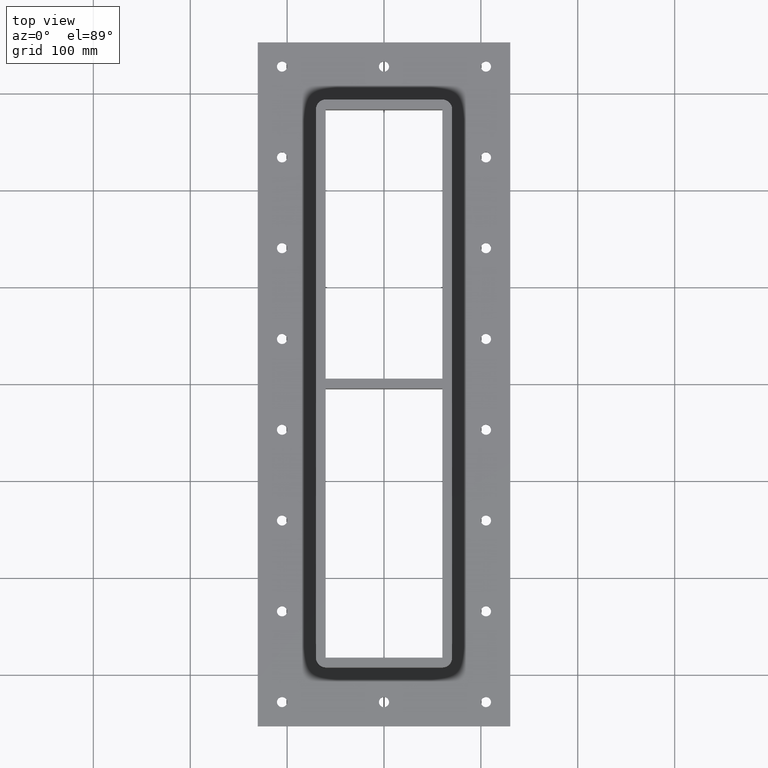
[diagram: clean part render]
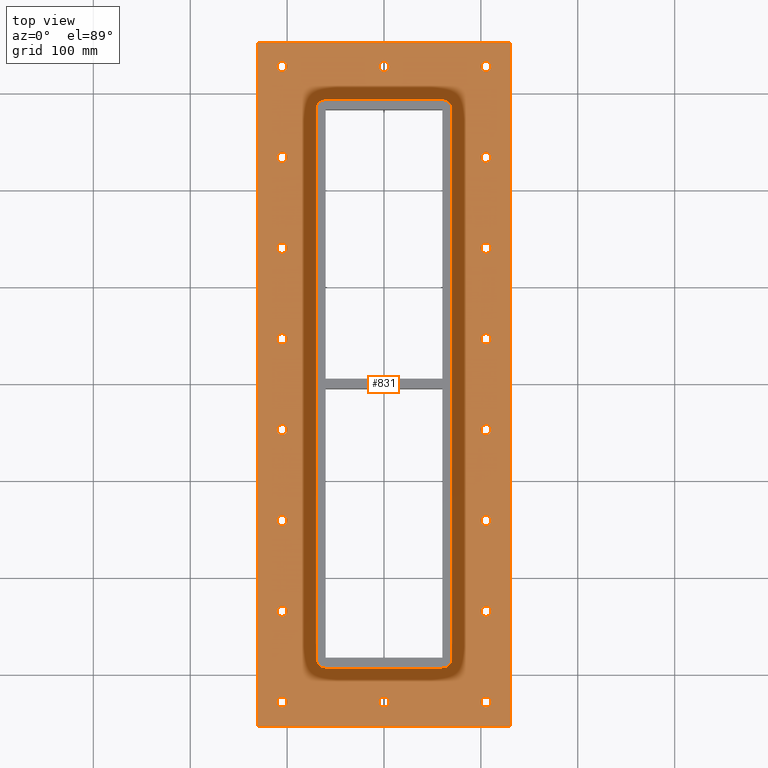
[diagram: same view with one face highlighted and labeled with its STEP entity id]
A machine part, top view. The second image highlights one B-rep face of the part: STEP entity #831.
In plain terms, the highlighted planar face has unit normal (0, 0, 1).
Its self-contained STEP definition (entity closure, byte-faithful):
#84=CARTESIAN_POINT('',(5.250000000000057,-328.00000000000006,-17.0));
#85=VERTEX_POINT('',#84);
#86=CARTESIAN_POINT('',(5.329071E-014,-328.00000000000006,-17.000000000000028));
#87=DIRECTION('',(0.0,0.0,-1.0));
#88=DIRECTION('',(1.0,0.0,0.0));
#89=AXIS2_PLACEMENT_3D('',#86,#87,#88);
#90=CIRCLE('',#89,5.25);
#91=EDGE_CURVE('',#85,#85,#90,.T.);
#112=CARTESIAN_POINT('',(5.24999999999995,328.00000000000011,-17.0));
#113=VERTEX_POINT('',#112);
#114=CARTESIAN_POINT('',(-5.329071E-014,328.00000000000011,-17.000000000000028));
#115=DIRECTION('',(0.0,0.0,-1.0));
#116=DIRECTION('',(1.0,0.0,0.0));
#117=AXIS2_PLACEMENT_3D('',#114,#115,#116);
#118=CIRCLE('',#117,5.25);
#119=EDGE_CURVE('',#113,#113,#118,.T.);
#140=CARTESIAN_POINT('',(110.50000000000003,-234.28571428571411,-17.0));
#141=VERTEX_POINT('',#140);
#142=CARTESIAN_POINT('',(105.25000000000003,-234.28571428571411,-17.000000000000028));
#143=DIRECTION('',(0.0,0.0,-1.0));
#144=DIRECTION('',(1.0,0.0,0.0));
#145=AXIS2_PLACEMENT_3D('',#142,#143,#144);
#146=CIRCLE('',#145,5.25);
#147=EDGE_CURVE('',#141,#141,#146,.T.);
#168=CARTESIAN_POINT('',(110.5,-140.57142857142841,-17.0));
#169=VERTEX_POINT('',#168);
#170=CARTESIAN_POINT('',(105.25,-140.57142857142841,-17.000000000000028));
#171=DIRECTION('',(0.0,0.0,-1.0));
#172=DIRECTION('',(1.0,0.0,0.0));
#173=AXIS2_PLACEMENT_3D('',#170,#171,#172);
#174=CIRCLE('',#173,5.25);
#175=EDGE_CURVE('',#169,#169,#174,.T.);
#196=CARTESIAN_POINT('',(110.49999999999999,-46.857142857142676,-17.0));
#197=VERTEX_POINT('',#196);
#198=CARTESIAN_POINT('',(105.24999999999999,-46.857142857142676,-17.000000000000028));
#199=DIRECTION('',(0.0,0.0,-1.0));
#200=DIRECTION('',(1.0,0.0,0.0));
#201=AXIS2_PLACEMENT_3D('',#198,#199,#200);
#202=CIRCLE('',#201,5.25);
#203=EDGE_CURVE('',#197,#197,#202,.T.);
#224=CARTESIAN_POINT('',(110.49999999999997,46.85714285714306,-17.0));
#225=VERTEX_POINT('',#224);
#226=CARTESIAN_POINT('',(105.24999999999997,46.85714285714306,-17.000000000000028));
#227=DIRECTION('',(0.0,0.0,-1.0));
#228=DIRECTION('',(1.0,0.0,0.0));
#229=AXIS2_PLACEMENT_3D('',#226,#227,#228);
#230=CIRCLE('',#229,5.25);
#231=EDGE_CURVE('',#225,#225,#230,.T.);
#252=CARTESIAN_POINT('',(110.49999999999996,140.57142857142873,-17.0));
#253=VERTEX_POINT('',#252);
#254=CARTESIAN_POINT('',(105.24999999999994,140.57142857142873,-17.000000000000028));
#255=DIRECTION('',(0.0,0.0,-1.0));
#256=DIRECTION('',(1.0,0.0,0.0));
#257=AXIS2_PLACEMENT_3D('',#254,#255,#256);
#258=CIRCLE('',#257,5.25);
#259=EDGE_CURVE('',#253,#253,#258,.T.);
#280=CARTESIAN_POINT('',(110.49999999999994,234.28571428571445,-17.0));
#281=VERTEX_POINT('',#280);
#282=CARTESIAN_POINT('',(105.24999999999993,234.28571428571445,-17.000000000000028));
#283=DIRECTION('',(0.0,0.0,-1.0));
#284=DIRECTION('',(1.0,0.0,0.0));
#285=AXIS2_PLACEMENT_3D('',#282,#283,#284);
#286=CIRCLE('',#285,5.25);
#287=EDGE_CURVE('',#281,#281,#286,.T.);
#308=CARTESIAN_POINT('',(-100.00000000000001,234.28571428571422,-17.0));
#309=VERTEX_POINT('',#308);
#310=CARTESIAN_POINT('',(-105.25000000000003,234.28571428571422,-17.000000000000028));
#311=DIRECTION('',(0.0,0.0,-1.0));
#312=DIRECTION('',(1.0,0.0,0.0));
#313=AXIS2_PLACEMENT_3D('',#310,#311,#312);
#314=CIRCLE('',#313,5.25);
#315=EDGE_CURVE('',#309,#309,#314,.T.);
#336=CARTESIAN_POINT('',(-100.0,140.57142857142856,-17.0));
#337=VERTEX_POINT('',#336);
#338=CARTESIAN_POINT('',(-105.25,140.57142857142856,-17.000000000000028));
#339=DIRECTION('',(0.0,0.0,-1.0));
#340=DIRECTION('',(1.0,0.0,0.0));
#341=AXIS2_PLACEMENT_3D('',#338,#339,#340);
#342=CIRCLE('',#341,5.25);
#343=EDGE_CURVE('',#337,#337,#342,.T.);
#364=CARTESIAN_POINT('',(-99.999999999999986,46.857142857142819,-17.0));
#365=VERTEX_POINT('',#364);
#366=CARTESIAN_POINT('',(-105.24999999999999,46.857142857142819,-17.000000000000028));
#367=DIRECTION('',(0.0,0.0,-1.0));
#368=DIRECTION('',(1.0,0.0,0.0));
#369=AXIS2_PLACEMENT_3D('',#366,#367,#368);
#370=CIRCLE('',#369,5.25);
#371=EDGE_CURVE('',#365,#365,#370,.T.);
#392=CARTESIAN_POINT('',(-99.999999999999972,-46.857142857142918,-17.0));
#393=VERTEX_POINT('',#392);
#394=CARTESIAN_POINT('',(-105.24999999999997,-46.857142857142918,-17.000000000000028));
#395=DIRECTION('',(0.0,0.0,-1.0));
#396=DIRECTION('',(1.0,0.0,0.0));
#397=AXIS2_PLACEMENT_3D('',#394,#395,#396);
#398=CIRCLE('',#397,5.25);
#399=EDGE_CURVE('',#393,#393,#398,.T.);
#420=CARTESIAN_POINT('',(-99.999999999999943,-140.57142857142858,-17.0));
#421=VERTEX_POINT('',#420);
#422=CARTESIAN_POINT('',(-105.24999999999994,-140.57142857142858,-17.000000000000028));
#423=DIRECTION('',(0.0,0.0,-1.0));
#424=DIRECTION('',(1.0,0.0,0.0));
#425=AXIS2_PLACEMENT_3D('',#422,#423,#424);
#426=CIRCLE('',#425,5.25);
#427=EDGE_CURVE('',#421,#421,#426,.T.);
#448=CARTESIAN_POINT('',(-99.999999999999929,-234.28571428571431,-17.0));
#449=VERTEX_POINT('',#448);
#450=CARTESIAN_POINT('',(-105.24999999999993,-234.28571428571431,-17.000000000000028));
#451=DIRECTION('',(0.0,0.0,-1.0));
#452=DIRECTION('',(1.0,0.0,0.0));
#453=AXIS2_PLACEMENT_3D('',#450,#451,#452);
#454=CIRCLE('',#453,5.25);
#455=EDGE_CURVE('',#449,#449,#454,.T.);
#476=CARTESIAN_POINT('',(-100.00000000000006,328.00000000000006,-17.0));
#477=VERTEX_POINT('',#476);
#478=CARTESIAN_POINT('',(-105.25000000000006,328.00000000000006,-17.000000000000028));
#479=DIRECTION('',(0.0,0.0,-1.0));
#480=DIRECTION('',(1.0,0.0,0.0));
#481=AXIS2_PLACEMENT_3D('',#478,#479,#480);
#482=CIRCLE('',#481,5.25);
#483=EDGE_CURVE('',#477,#477,#482,.T.);
#504=CARTESIAN_POINT('',(110.49999999999991,328.00000000000017,-17.0));
#505=VERTEX_POINT('',#504);
#506=CARTESIAN_POINT('',(105.24999999999991,328.00000000000017,-17.000000000000028));
#507=DIRECTION('',(0.0,0.0,-1.0));
#508=DIRECTION('',(1.0,0.0,0.0));
#509=AXIS2_PLACEMENT_3D('',#506,#507,#508);
#510=CIRCLE('',#509,5.25);
#511=EDGE_CURVE('',#505,#505,#510,.T.);
#532=CARTESIAN_POINT('',(110.50000000000006,-328.00000000000006,-17.0));
#533=VERTEX_POINT('',#532);
#534=CARTESIAN_POINT('',(105.25000000000006,-328.00000000000006,-17.000000000000028));
#535=DIRECTION('',(0.0,0.0,-1.0));
#536=DIRECTION('',(1.0,0.0,0.0));
#537=AXIS2_PLACEMENT_3D('',#534,#535,#536);
#538=CIRCLE('',#537,5.25);
#539=EDGE_CURVE('',#533,#533,#538,.T.);
#560=CARTESIAN_POINT('',(-99.999999999999915,-328.00000000000006,-17.0));
#561=VERTEX_POINT('',#560);
#562=CARTESIAN_POINT('',(-105.24999999999991,-328.00000000000006,-17.000000000000028));
#563=DIRECTION('',(0.0,0.0,-1.0));
#564=DIRECTION('',(1.0,0.0,0.0));
#565=AXIS2_PLACEMENT_3D('',#562,#563,#564);
#566=CIRCLE('',#565,5.25);
#567=EDGE_CURVE('',#561,#561,#566,.T.);
#587=CARTESIAN_POINT('',(-130.24999999999991,-353.00000000000006,-17.0));
#588=VERTEX_POINT('',#587);
#595=CARTESIAN_POINT('',(-130.25000000000006,353.00000000000006,-17.0));
#596=VERTEX_POINT('',#595);
#597=CARTESIAN_POINT('',(-130.25000000000006,353.00000000000006,-17.0));
#598=DIRECTION('',(0.0,-1.0,0.0));
#599=VECTOR('',#598,706.00000000000011);
#600=LINE('',#597,#599);
#601=EDGE_CURVE('',#596,#588,#600,.T.);
#626=CARTESIAN_POINT('',(130.24999999999991,353.00000000000017,-17.0));
#627=VERTEX_POINT('',#626);
#628=CARTESIAN_POINT('',(130.24999999999994,353.00000000000011,-17.0));
#629=DIRECTION('',(-1.0,0.0,0.0));
#630=VECTOR('',#629,260.5);
#631=LINE('',#628,#630);
#632=EDGE_CURVE('',#627,#596,#631,.T.);
#657=CARTESIAN_POINT('',(130.25000000000006,-353.00000000000006,-17.0));
#658=VERTEX_POINT('',#657);
#659=CARTESIAN_POINT('',(130.25000000000006,-353.00000000000011,-17.0));
#660=DIRECTION('',(0.0,1.0,0.0));
#661=VECTOR('',#660,706.00000000000023);
#662=LINE('',#659,#661);
#663=EDGE_CURVE('',#658,#627,#662,.T.);
#686=CARTESIAN_POINT('',(-130.24999999999994,-353.00000000000006,-17.0));
#687=DIRECTION('',(1.0,0.0,0.0));
#688=VECTOR('',#687,260.5);
#689=LINE('',#686,#688);
#690=EDGE_CURVE('',#588,#658,#689,.T.);
#696=CARTESIAN_POINT('',(0.0,0.0,-17.0));
#697=DIRECTION('',(0.0,0.0,1.0));
#698=DIRECTION('',(1.0,0.0,0.0));
#699=AXIS2_PLACEMENT_3D('',#696,#697,#698);
#700=PLANE('',#699);
#701=ORIENTED_EDGE('',*,*,#690,.T.);
#702=ORIENTED_EDGE('',*,*,#663,.T.);
#703=ORIENTED_EDGE('',*,*,#632,.T.);
#704=ORIENTED_EDGE('',*,*,#601,.T.);
#705=EDGE_LOOP('',(#701,#702,#703,#704));
#706=FACE_OUTER_BOUND('',#705,.T.);
#707=ORIENTED_EDGE('',*,*,#91,.T.);
#708=EDGE_LOOP('',(#707));
#709=FACE_BOUND('',#708,.T.);
#710=ORIENTED_EDGE('',*,*,#119,.T.);
#711=EDGE_LOOP('',(#710));
#712=FACE_BOUND('',#711,.T.);
#713=ORIENTED_EDGE('',*,*,#147,.T.);
#714=EDGE_LOOP('',(#713));
#715=FACE_BOUND('',#714,.T.);
#716=ORIENTED_EDGE('',*,*,#175,.T.);
#717=EDGE_LOOP('',(#716));
#718=FACE_BOUND('',#717,.T.);
#719=ORIENTED_EDGE('',*,*,#203,.T.);
#720=EDGE_LOOP('',(#719));
#721=FACE_BOUND('',#720,.T.);
#722=ORIENTED_EDGE('',*,*,#231,.T.);
#723=EDGE_LOOP('',(#722));
#724=FACE_BOUND('',#723,.T.);
#725=ORIENTED_EDGE('',*,*,#259,.T.);
#726=EDGE_LOOP('',(#725));
#727=FACE_BOUND('',#726,.T.);
#728=ORIENTED_EDGE('',*,*,#287,.T.);
#729=EDGE_LOOP('',(#728));
#730=FACE_BOUND('',#729,.T.);
#731=ORIENTED_EDGE('',*,*,#315,.T.);
#732=EDGE_LOOP('',(#731));
#733=FACE_BOUND('',#732,.T.);
#734=ORIENTED_EDGE('',*,*,#343,.T.);
#735=EDGE_LOOP('',(#734));
#736=FACE_BOUND('',#735,.T.);
#737=ORIENTED_EDGE('',*,*,#371,.T.);
#738=EDGE_LOOP('',(#737));
#739=FACE_BOUND('',#738,.T.);
#740=ORIENTED_EDGE('',*,*,#399,.T.);
#741=EDGE_LOOP('',(#740));
#742=FACE_BOUND('',#741,.T.);
#743=ORIENTED_EDGE('',*,*,#427,.T.);
#744=EDGE_LOOP('',(#743));
#745=FACE_BOUND('',#744,.T.);
#746=ORIENTED_EDGE('',*,*,#455,.T.);
#747=EDGE_LOOP('',(#746));
#748=FACE_BOUND('',#747,.T.);
#749=ORIENTED_EDGE('',*,*,#483,.T.);
#750=EDGE_LOOP('',(#749));
#751=FACE_BOUND('',#750,.T.);
#752=ORIENTED_EDGE('',*,*,#511,.T.);
#753=EDGE_LOOP('',(#752));
#754=FACE_BOUND('',#753,.T.);
#755=ORIENTED_EDGE('',*,*,#539,.T.);
#756=EDGE_LOOP('',(#755));
#757=FACE_BOUND('',#756,.T.);
#758=ORIENTED_EDGE('',*,*,#567,.T.);
#759=EDGE_LOOP('',(#758));
#760=FACE_BOUND('',#759,.T.);
#761=CARTESIAN_POINT('',(70.249999999999915,283.00000000000006,-17.0));
#762=VERTEX_POINT('',#761);
#763=CARTESIAN_POINT('',(60.249999999999986,293.00000000000006,-17.0));
#764=VERTEX_POINT('',#763);
#765=CARTESIAN_POINT('',(60.249999999999915,283.00000000000023,-17.0));
#766=DIRECTION('',(0.0,0.0,1.0));
#767=DIRECTION('',(0.707106781186547,0.707106781186547,0.0));
#768=AXIS2_PLACEMENT_3D('',#765,#766,#767);
#769=CIRCLE('',#768,9.999999999999998);
#770=EDGE_CURVE('',#762,#764,#769,.T.);
#771=ORIENTED_EDGE('',*,*,#770,.F.);
#772=CARTESIAN_POINT('',(70.250000000000057,-283.00000000000006,-17.0));
#773=VERTEX_POINT('',#772);
#774=CARTESIAN_POINT('',(70.250000000000057,-283.00000000000006,-17.0));
#775=DIRECTION('',(0.0,1.0,0.0));
#776=VECTOR('',#775,566.0);
#777=LINE('',#774,#776);
#778=EDGE_CURVE('',#773,#762,#777,.T.);
#779=ORIENTED_EDGE('',*,*,#778,.F.);
#780=CARTESIAN_POINT('',(60.249999999999986,-293.00000000000006,-17.0));
#781=VERTEX_POINT('',#780);
#782=CARTESIAN_POINT('',(60.250000000000057,-282.99999999999977,-17.0));
#783=DIRECTION('',(0.0,0.0,1.0));
#784=DIRECTION('',(0.707106781186547,-0.707106781186547,0.0));
#785=AXIS2_PLACEMENT_3D('',#782,#783,#784);
#786=CIRCLE('',#785,9.999999999999998);
#787=EDGE_CURVE('',#781,#773,#786,.T.);
#788=ORIENTED_EDGE('',*,*,#787,.F.);
#789=CARTESIAN_POINT('',(-60.249999999999915,-293.00000000000006,-17.0));
#790=VERTEX_POINT('',#789);
#791=CARTESIAN_POINT('',(-60.249999999999915,-292.99999999999977,-17.0));
#792=DIRECTION('',(1.0,0.0,0.0));
#793=VECTOR('',#792,120.4999999999999);
#794=LINE('',#791,#793);
#795=EDGE_CURVE('',#790,#781,#794,.T.);
#796=ORIENTED_EDGE('',*,*,#795,.F.);
#797=CARTESIAN_POINT('',(-70.249999999999986,-283.00000000000006,-17.0));
#798=VERTEX_POINT('',#797);
#799=CARTESIAN_POINT('',(-60.249999999999844,-282.99999999999977,-17.0));
#800=DIRECTION('',(0.0,0.0,1.0));
#801=DIRECTION('',(-0.707106781186547,-0.707106781186547,0.0));
#802=AXIS2_PLACEMENT_3D('',#799,#800,#801);
#803=CIRCLE('',#802,9.999999999999998);
#804=EDGE_CURVE('',#798,#790,#803,.T.);
#805=ORIENTED_EDGE('',*,*,#804,.F.);
#806=CARTESIAN_POINT('',(-70.250000000000057,283.00000000000006,-17.0));
#807=VERTEX_POINT('',#806);
#808=CARTESIAN_POINT('',(-70.250000000000043,283.0,-17.0));
#809=DIRECTION('',(0.0,-1.0,0.0));
#810=VECTOR('',#809,566.0);
#811=LINE('',#808,#810);
#812=EDGE_CURVE('',#807,#798,#811,.T.);
#813=ORIENTED_EDGE('',*,*,#812,.F.);
#814=CARTESIAN_POINT('',(-60.250000000000057,293.00000000000006,-17.0));
#815=VERTEX_POINT('',#814);
#816=CARTESIAN_POINT('',(-60.250000000000057,283.00000000000023,-17.0));
#817=DIRECTION('',(0.0,0.0,1.0));
#818=DIRECTION('',(-0.707106781186547,0.707106781186547,0.0));
#819=AXIS2_PLACEMENT_3D('',#816,#817,#818);
#820=CIRCLE('',#819,9.999999999999998);
#821=EDGE_CURVE('',#815,#807,#820,.T.);
#822=ORIENTED_EDGE('',*,*,#821,.F.);
#823=CARTESIAN_POINT('',(60.249999999999986,293.00000000000023,-17.0));
#824=DIRECTION('',(-1.0,0.0,0.0));
#825=VECTOR('',#824,120.50000000000006);
#826=LINE('',#823,#825);
#827=EDGE_CURVE('',#764,#815,#826,.T.);
#828=ORIENTED_EDGE('',*,*,#827,.F.);
#829=EDGE_LOOP('',(#771,#779,#788,#796,#805,#813,#822,#828));
#830=FACE_BOUND('',#829,.T.);
#831=ADVANCED_FACE('',(#706,#709,#712,#715,#718,#721,#724,#727,#730,#733,#736,#739,#742,#745,#748,#751,#754,#757,#760,#830),#700,.T.);